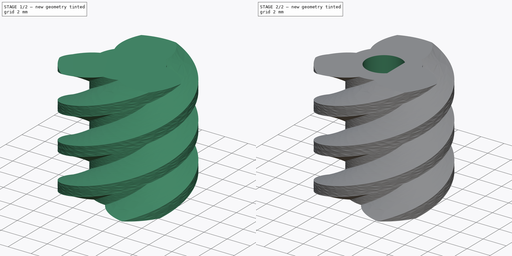
[diagram: build sequence overview — one tinted view per stage of 2, left to right]
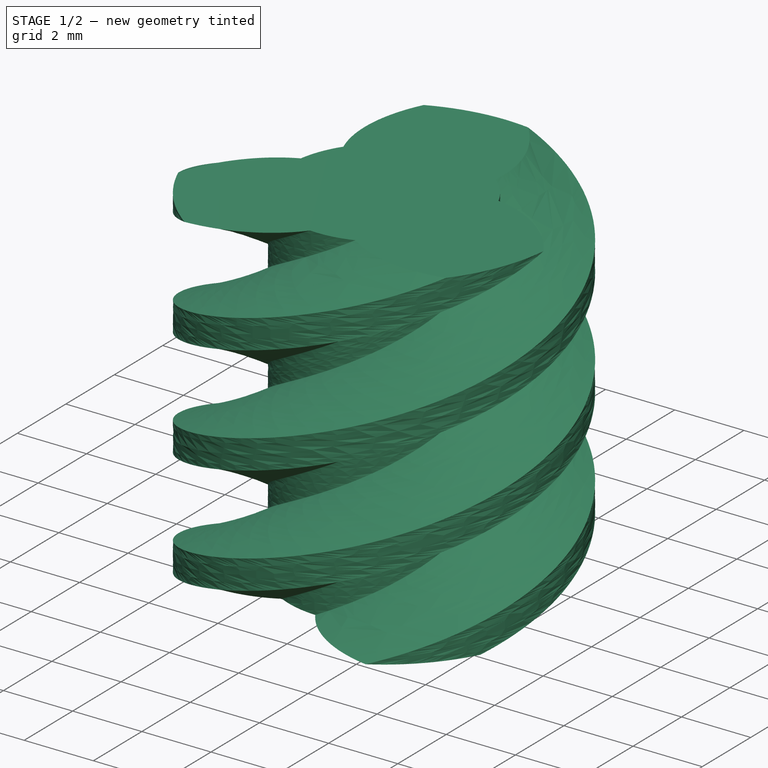
[diagram: stage 1 of 2 — iso view after this stage's code; geometry added in this stage tinted green]
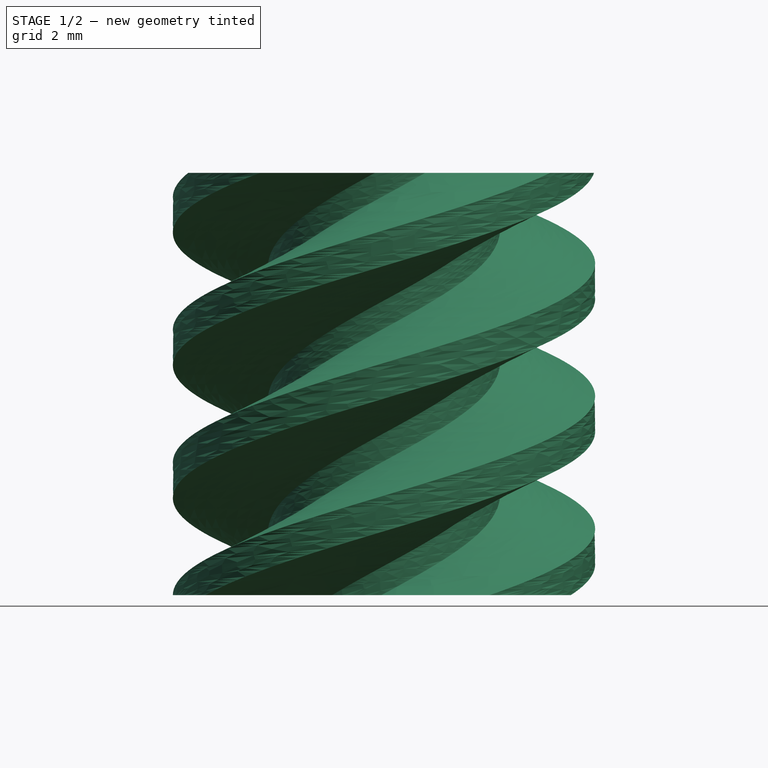
[diagram: stage 1 of 2 — front view after this stage's code; geometry added in this stage tinted green]
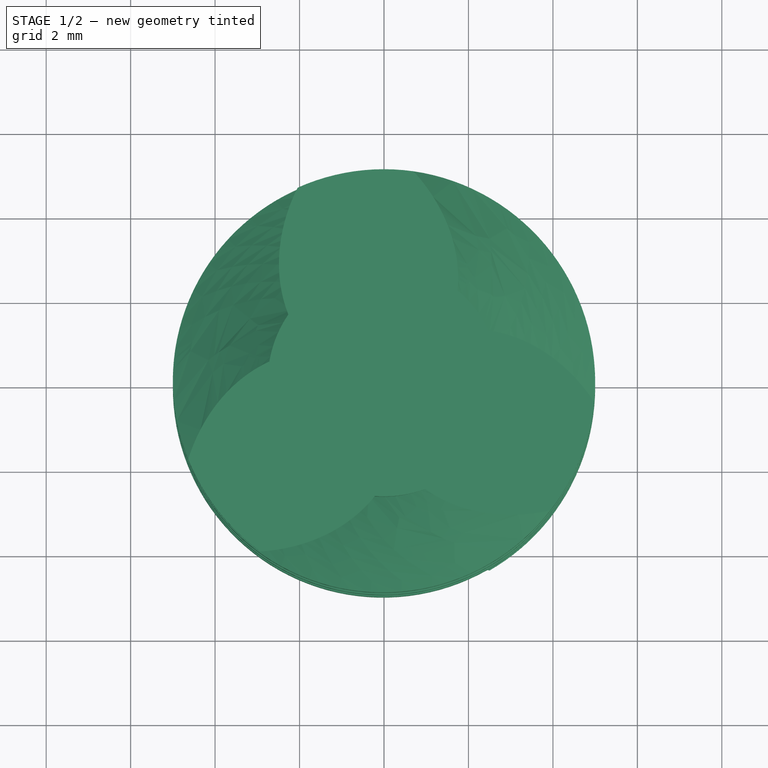
[diagram: stage 1 of 2 — top view after this stage's code; geometry added in this stage tinted green]
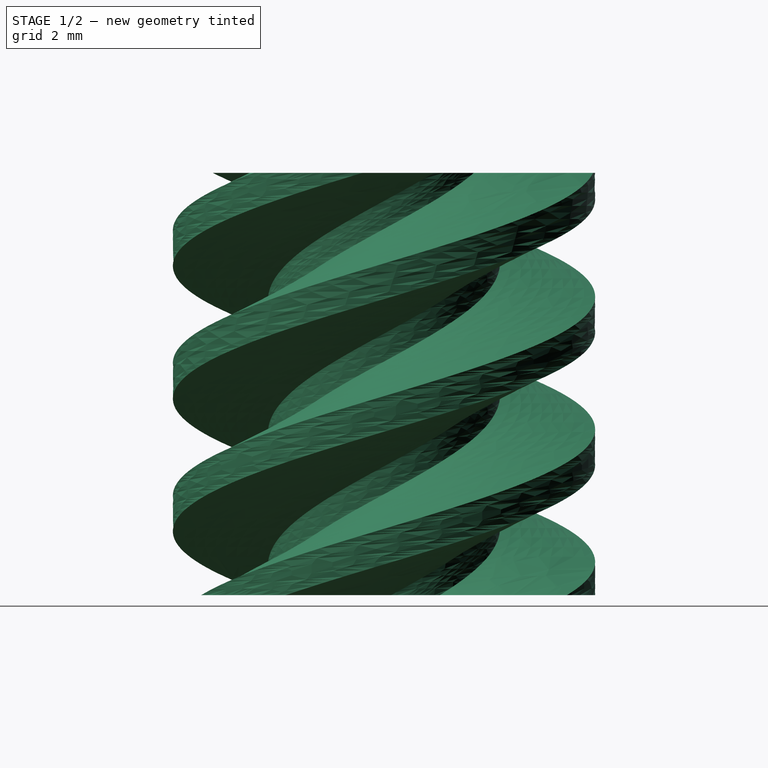
[diagram: stage 1 of 2 — right view after this stage's code; geometry added in this stage tinted green]
FCSTD DOCUMENT  (FreeCAD 0.21R33771 (Git))
Label: motor-gear
License: All rights reserved
LicenseURL: https://en.wikipedia.org/wiki/All_rights_reserved
objects: PartDesign::FeaturePython×1, PartDesign::Plane×1, Sketcher::SketchObject×1, PartDesign::Pocket×1, PartDesign::Body×1
note: 6 computed .brp shape members not serialized (recipe doc carries the construction recipe); baked Part::Feature solids carry a one-line shape summary decoded from their .brp

FEATURE [PartDesign::FeaturePython] WormGear  # WARN: FeaturePython — macro-defined, semantics opaque (R4)
  AttacherType = Attacher::AttachEngine3D
  beta = 20.556
  clearance = 0.25
  diameter = 8
  head = 0
  height = 10
  module = 1
  pressure_angle = 20
  reverse_pitch = false
  teeth = 3
  version = 1.2.0
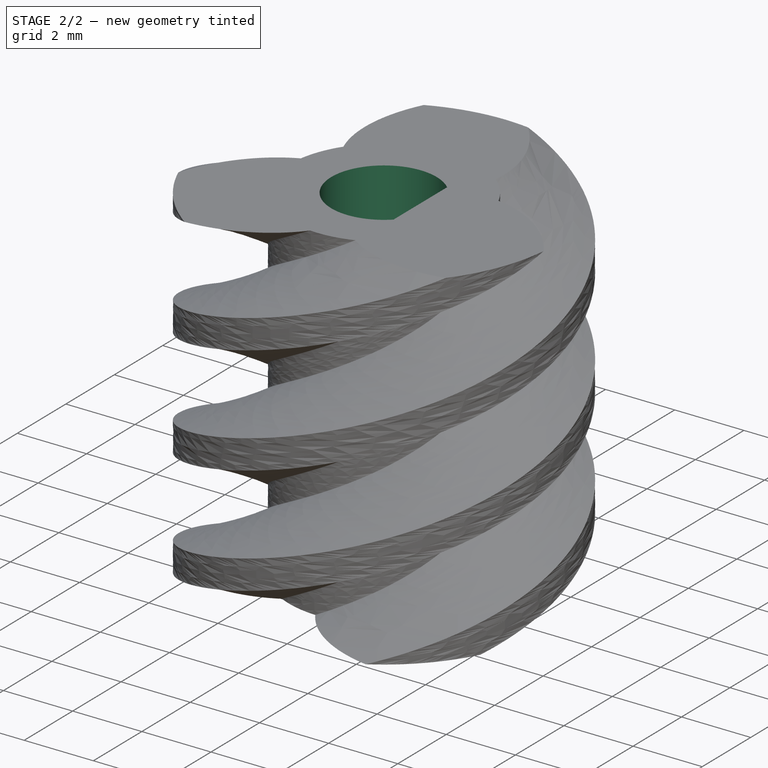
[diagram: stage 2 of 2 — iso view after this stage's code; geometry added in this stage tinted green]
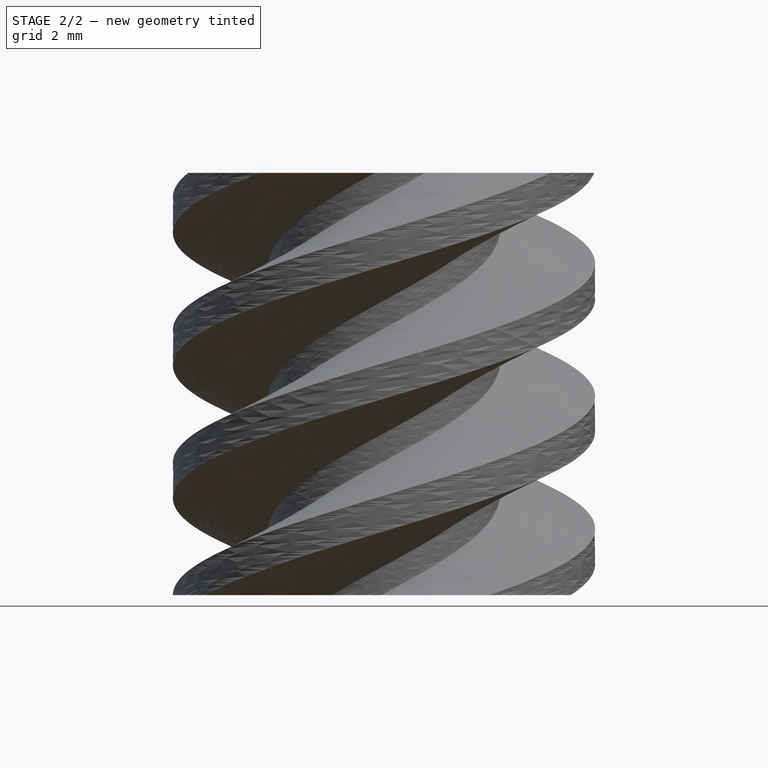
[diagram: stage 2 of 2 — front view after this stage's code; geometry added in this stage tinted green]
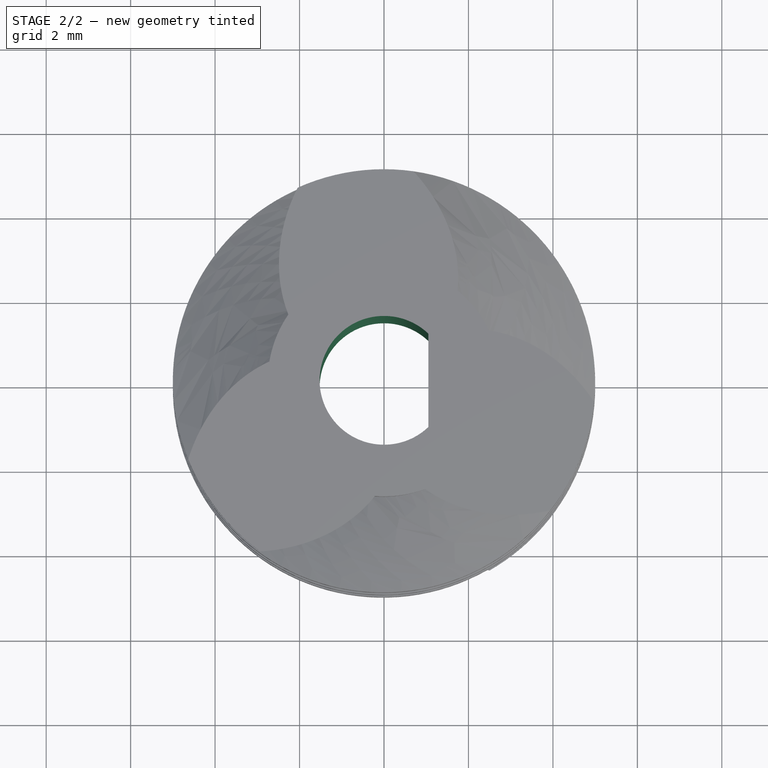
[diagram: stage 2 of 2 — top view after this stage's code; geometry added in this stage tinted green]
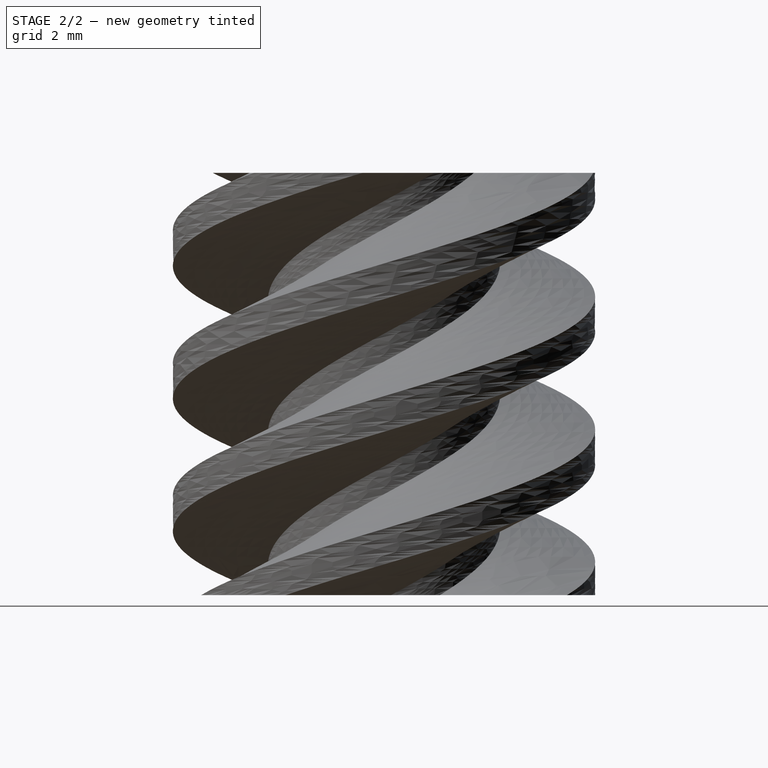
[diagram: stage 2 of 2 — right view after this stage's code; geometry added in this stage tinted green]
FEATURE [PartDesign::Plane] DatumPlane
  AttachmentOffset = pos=(0,0,10) rot=(0,0,1;0rad)
  Length = 60
  MapMode = 5
  Placement = pos=(0,0,10) rot=(0,0,1;0rad)
  ResizeMode = 0
  Support = -> [XY_Plane]
  Width = 60
  expr: .AttachmentOffset.Base.z = WormGear.height
FEATURE [Sketcher::SketchObject] Sketch
  FullyConstrained = true
  MapMode = 5
  Placement = pos=(0,0,10) rot=(0,0,1;0rad)
  Support = -> [DatumPlane]
  sketch-geometry (2):
    g0: LineSegment StartX=1.05 StartY=1.10595 StartZ=0 EndX=1.05 EndY=-1.10595 EndZ=0
    g1: ArcOfCircle CenterX=0 CenterY=0 CenterZ=0 NormalX=0 NormalY=0 NormalZ=1 AngleXU=0 Radius=1.525 StartAngle=0.811344 EndAngle=5.47184
  constraints (6):
    c: Vertical(g0)
    c: Coincident(g1,g0)
    c: Coincident(g0,g1)
    c: DistanceX(g1,g0) = 1.05
    c: Diameter(g1) = 3.05
    c: Coincident(g1,g-1)
FEATURE [PartDesign::Pocket] Pocket
  BaseFeature = -> WormGear
  Direction = (0,0,-1)
  Length = 0
  Length2 = 5
  Profile = -> Sketch
  ReferenceAxis = -> Sketch [N_Axis]
  Type = 3
  UpToFace = -> XY_Plane
FEATURE [PartDesign::Body] Body
  Group = -> [WormGear,Sketch,DatumPlane,Pocket]
  Origin = -> Origin
  Tip = -> Pocket
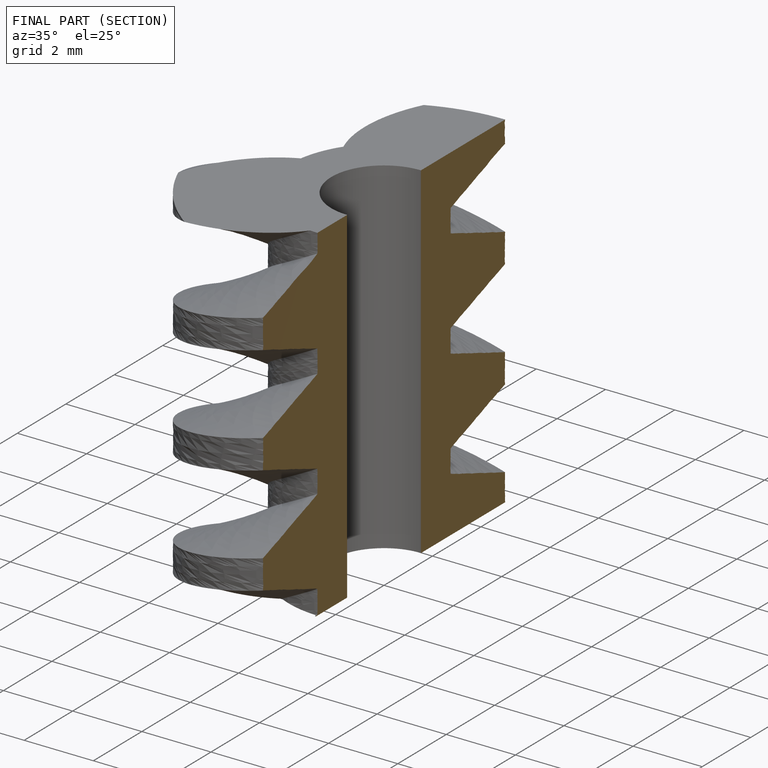
[diagram: finished part — half-section view (interior)]
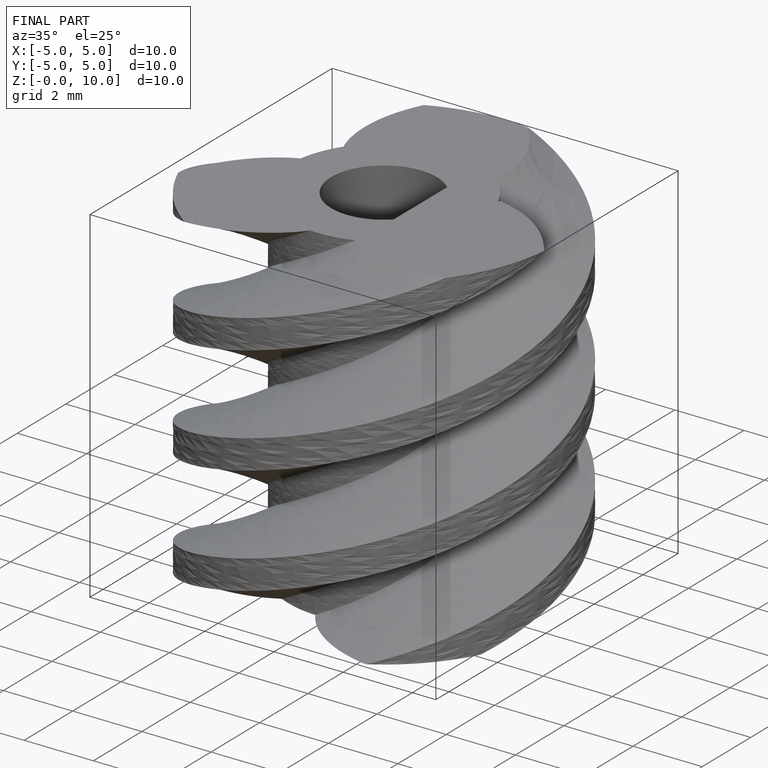
[diagram: finished part — iso view with bounding-box wireframe]
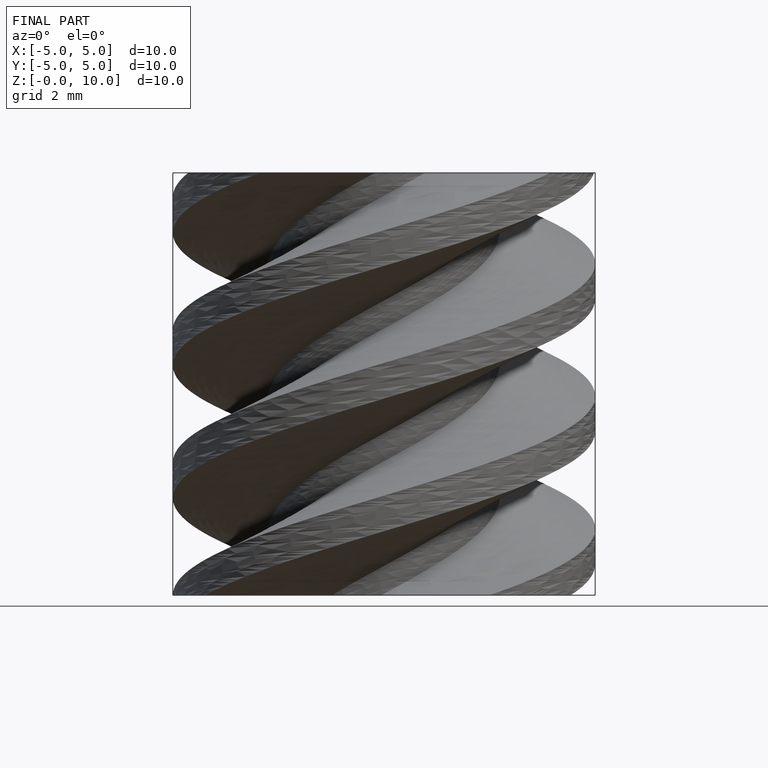
[diagram: finished part — front view with bounding-box wireframe]
